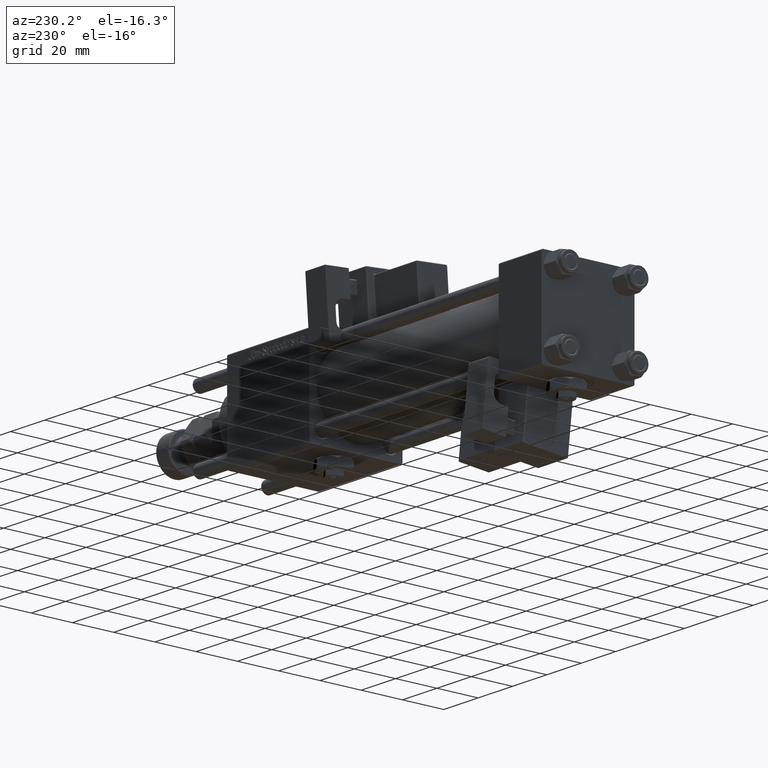
[diagram: clean part render]
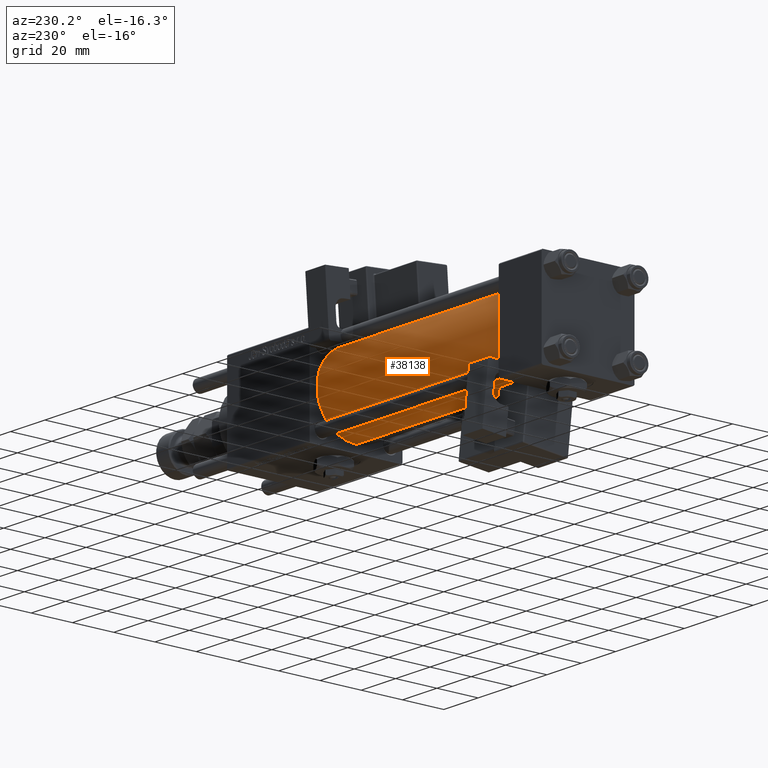
[diagram: same view with one face highlighted and labeled with its STEP entity id]
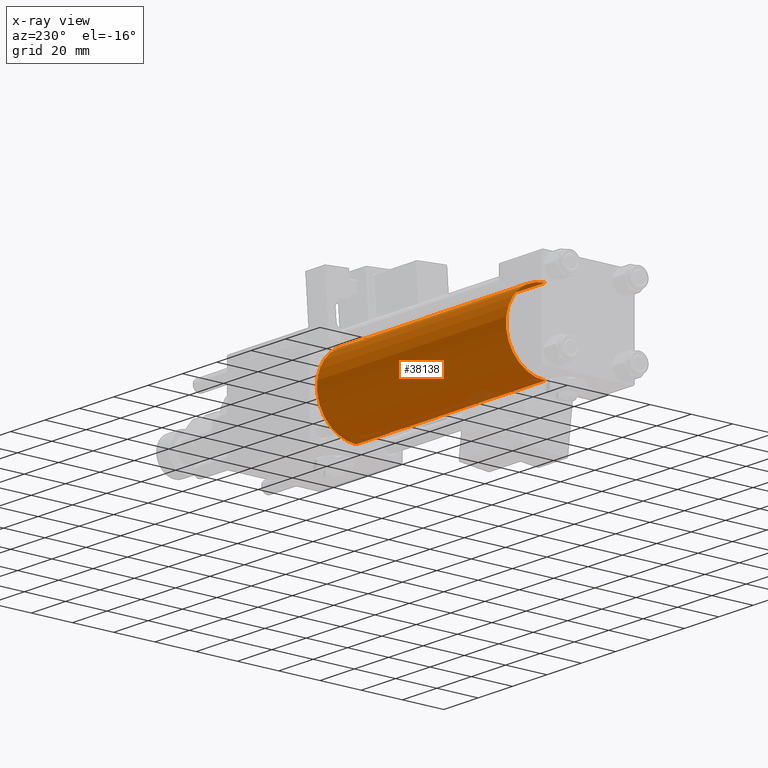
[diagram: x-ray of the same camera — body ghosted, the highlighted face saturated]
A machine part, auxiliary view. The second image highlights one B-rep face of the part: STEP entity #38138.
The next image is the same camera in x-ray: the body ghosted, the highlighted face saturated — about 2% of this face is hidden behind the body in this view.
In plain terms, the highlighted cylindrical surface (partial cylindrical patch) has radius 19 mm, axis along (-1, -0, -0).
Its self-contained STEP definition (entity closure, byte-faithful):
#16 = CIRCLE ( 'NONE', #49672, 19.00000000000000000 ) ;
#469 = EDGE_CURVE ( 'NONE', #27811, #10264, #38032, .T. ) ;
#5473 = DIRECTION ( 'NONE',  ( -1.000000000000000000, -0.000000000000000000, -0.000000000000000000 ) ) ;
#7519 = ORIENTED_EDGE ( 'NONE', *, *, #469, .T. ) ;
#7641 = EDGE_CURVE ( 'NONE', #27811, #31914, #10588, .T. ) ;
#10211 = FACE_OUTER_BOUND ( 'NONE', #43590, .T. ) ;
#10264 = VERTEX_POINT ( 'NONE', #56809 ) ;
#10588 = CIRCLE ( 'NONE', #24745, 19.00000000000000000 ) ;
#11152 = DIRECTION ( 'NONE',  ( 0.000000000000000000, 0.000000000000000000, 1.000000000000000000 ) ) ;
#11201 = VECTOR ( 'NONE', #44781, 1000.000000000000000 ) ;
#17383 = VECTOR ( 'NONE', #62484, 1000.000000000000000 ) ;
#19082 = ORIENTED_EDGE ( 'NONE', *, *, #27122, .T. ) ;
#22574 = CARTESIAN_POINT ( 'NONE',  ( 24.99999999999999289, -2.602085213965210642E-15, 19.00000000000000000 ) ) ;
#24086 = CARTESIAN_POINT ( 'NONE',  ( 135.0000000000000000, -2.752562955852396712E-16, -19.00000000000000000 ) ) ;
#24745 = AXIS2_PLACEMENT_3D ( 'NONE', #31675, #56449, #55527 ) ;
#25201 = VERTEX_POINT ( 'NONE', #22574 ) ;
#26052 = CARTESIAN_POINT ( 'NONE',  ( 135.0000000000000000, -2.602085213965210642E-15, 19.00000000000000000 ) ) ;
#27122 = EDGE_CURVE ( 'NONE', #10264, #25201, #16, .T. ) ;
#27613 = EDGE_CURVE ( 'NONE', #31914, #25201, #59086, .T. ) ;
#27742 = DIRECTION ( 'NONE',  ( 0.000000000000000000, 0.000000000000000000, 1.000000000000000000 ) ) ;
#27811 = VERTEX_POINT ( 'NONE', #24086 ) ;
#27823 = ORIENTED_EDGE ( 'NONE', *, *, #7641, .F. ) ;
#28625 = CARTESIAN_POINT ( 'NONE',  ( 135.0000000000000000, -2.602085213965210642E-15, 19.00000000000000000 ) ) ;
#31675 = CARTESIAN_POINT ( 'NONE',  ( 135.0000000000000000, -2.602085213965210642E-15, 0.000000000000000000 ) ) ;
#31914 = VERTEX_POINT ( 'NONE', #28625 ) ;
#38032 = LINE ( 'NONE', #38344, #17383 ) ;
#38138 = ADVANCED_FACE ( 'NONE', ( #10211 ), #40044, .T. ) ;
#38344 = CARTESIAN_POINT ( 'NONE',  ( 135.0000000000000000, -2.752562955852396712E-16, -19.00000000000000000 ) ) ;
#38832 = AXIS2_PLACEMENT_3D ( 'NONE', #43538, #5473, #11152 ) ;
#39710 = ORIENTED_EDGE ( 'NONE', *, *, #27613, .F. ) ;
#40044 = CYLINDRICAL_SURFACE ( 'NONE', #38832, 19.00000000000000000 ) ;
#43538 = CARTESIAN_POINT ( 'NONE',  ( 135.0000000000000000, -2.602085213965210642E-15, 0.000000000000000000 ) ) ;
#43590 = EDGE_LOOP ( 'NONE', ( #27823, #7519, #19082, #39710 ) ) ;
#44781 = DIRECTION ( 'NONE',  ( -1.000000000000000000, -0.000000000000000000, -0.000000000000000000 ) ) ;
#46499 = CARTESIAN_POINT ( 'NONE',  ( 24.99999999999999289, -2.602085213965210642E-15, 0.000000000000000000 ) ) ;
#49672 = AXIS2_PLACEMENT_3D ( 'NONE', #46499, #50966, #27742 ) ;
#50966 = DIRECTION ( 'NONE',  ( 1.000000000000000000, -0.000000000000000000, 0.000000000000000000 ) ) ;
#55527 = DIRECTION ( 'NONE',  ( 0.000000000000000000, 0.000000000000000000, -1.000000000000000000 ) ) ;
#56449 = DIRECTION ( 'NONE',  ( 1.000000000000000000, 0.000000000000000000, 0.000000000000000000 ) ) ;
#56809 = CARTESIAN_POINT ( 'NONE',  ( 24.99999999999999289, -2.752562955852396712E-16, -19.00000000000000000 ) ) ;
#59086 = LINE ( 'NONE', #26052, #11201 ) ;
#62484 = DIRECTION ( 'NONE',  ( -1.000000000000000000, -0.000000000000000000, -0.000000000000000000 ) ) ;